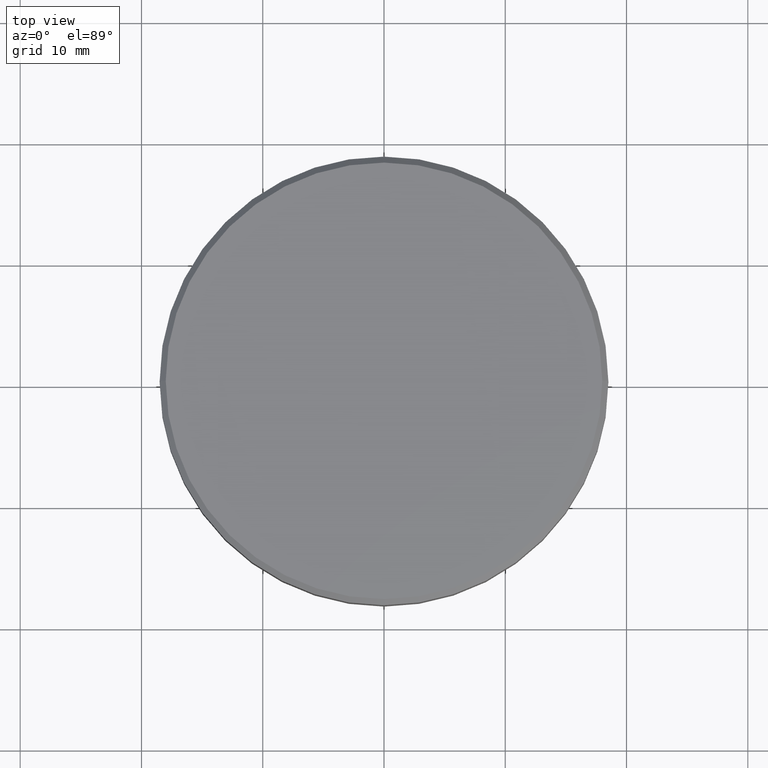
[diagram: clean part render]
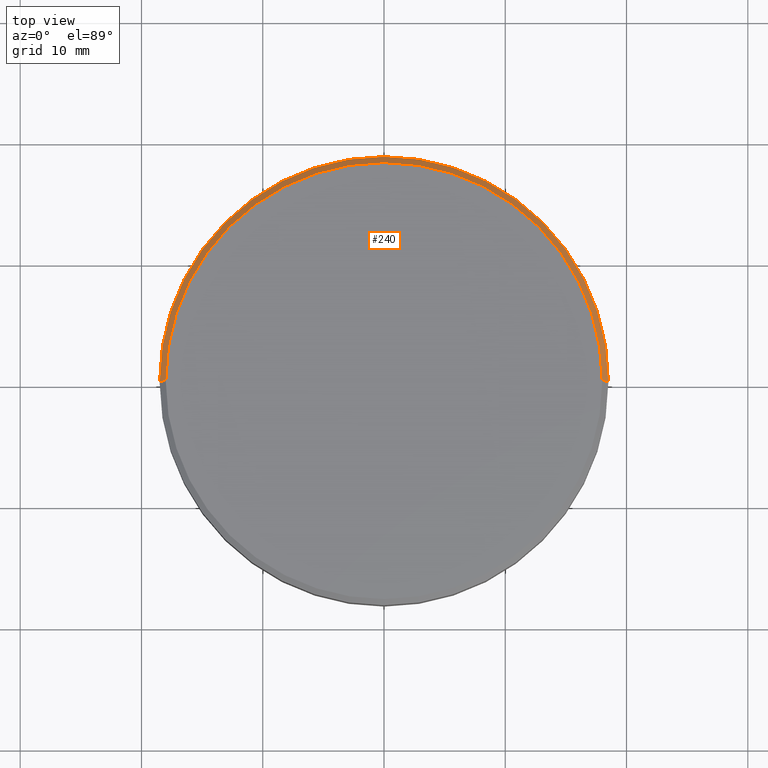
[diagram: same view with one face highlighted and labeled with its STEP entity id]
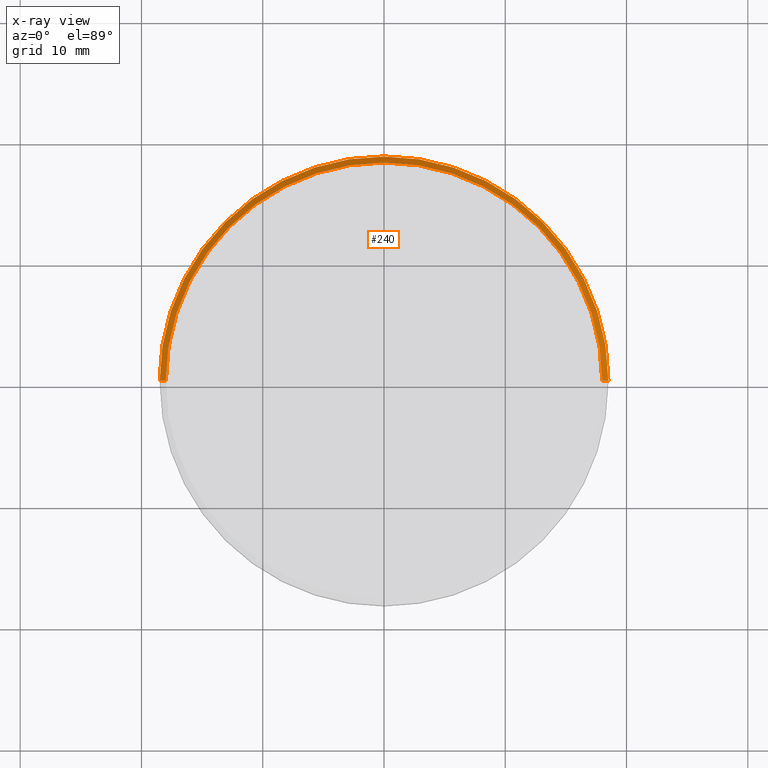
[diagram: x-ray of the same camera — body ghosted, the highlighted face saturated]
A machine part, top view. The second image highlights one B-rep face of the part: STEP entity #240.
The next image is the same camera in x-ray: the body ghosted, the highlighted face saturated — about 0% of this face is hidden behind the body in this view.
In plain terms, the highlighted conical surface has half-angle 45 deg.
Its self-contained STEP definition (entity closure, byte-faithful):
#4 = VECTOR ( 'NONE', #173, 1000.000000000000000 ) ;
#16 = CARTESIAN_POINT ( 'NONE',  ( -18.00000000000001066, 0.000000000000000000, 0.000000000000000000 ) ) ;
#18 = DIRECTION ( 'NONE',  ( -0.000000000000000000, -0.000000000000000000, 1.000000000000000000 ) ) ;
#35 = CARTESIAN_POINT ( 'NONE',  ( 18.00000000000001066, 2.234980408443920004E-15, 0.000000000000000000 ) ) ;
#57 = LINE ( 'NONE', #312, #4 ) ;
#58 = CARTESIAN_POINT ( 'NONE',  ( 0.000000000000000000, 0.000000000000000000, 0.000000000000000000 ) ) ;
#80 = CARTESIAN_POINT ( 'NONE',  ( -18.50000000000000000, 2.265596578422603396E-15, -0.5000000000000004441 ) ) ;
#82 = FACE_OUTER_BOUND ( 'NONE', #199, .T. ) ;
#103 = CARTESIAN_POINT ( 'NONE',  ( 18.50000000000000000, 0.000000000000000000, -0.5000000000000004441 ) ) ;
#109 = DIRECTION ( 'NONE',  ( 0.000000000000000000, 0.000000000000000000, -1.000000000000000000 ) ) ;
#115 = ORIENTED_EDGE ( 'NONE', *, *, #407, .F. ) ;
#120 = VERTEX_POINT ( 'NONE', #35 ) ;
#130 = CONICAL_SURFACE ( 'NONE', #165, 18.00000000000001066, 0.7853981633974378429 ) ;
#137 = CIRCLE ( 'NONE', #302, 18.00000000000001066 ) ;
#143 = DIRECTION ( 'NONE',  ( -1.000000000000000000, 0.000000000000000000, 0.000000000000000000 ) ) ;
#147 = CARTESIAN_POINT ( 'NONE',  ( 0.000000000000000000, 0.000000000000000000, -0.5000000000000004441 ) ) ;
#155 = DIRECTION ( 'NONE',  ( -0.7071067811865401342, 0.000000000000000000, -0.7071067811865549002 ) ) ;
#165 = AXIS2_PLACEMENT_3D ( 'NONE', #231, #109, #143 ) ;
#168 = VERTEX_POINT ( 'NONE', #103 ) ;
#173 = DIRECTION ( 'NONE',  ( 0.7071067811865401342, 8.659560562354844111E-17, -0.7071067811865549002 ) ) ;
#176 = EDGE_CURVE ( 'NONE', #120, #168, #57, .T. ) ;
#177 = VERTEX_POINT ( 'NONE', #387 ) ;
#199 = EDGE_LOOP ( 'NONE', ( #362, #328, #221, #115 ) ) ;
#208 = EDGE_CURVE ( 'NONE', #352, #168, #267, .T. ) ;
#212 = VECTOR ( 'NONE', #155, 1000.000000000000000 ) ;
#221 = ORIENTED_EDGE ( 'NONE', *, *, #208, .F. ) ;
#231 = CARTESIAN_POINT ( 'NONE',  ( 0.000000000000000000, 0.000000000000000000, 0.000000000000000000 ) ) ;
#240 = ADVANCED_FACE ( 'NONE', ( #82 ), #130, .T. ) ;
#246 = DIRECTION ( 'NONE',  ( 1.000000000000000000, 0.000000000000000000, 0.000000000000000000 ) ) ;
#266 = LINE ( 'NONE', #16, #212 ) ;
#267 = CIRCLE ( 'NONE', #322, 18.50000000000000000 ) ;
#302 = AXIS2_PLACEMENT_3D ( 'NONE', #58, #18, #246 ) ;
#312 = CARTESIAN_POINT ( 'NONE',  ( 18.00000000000001066, 2.204364238465237006E-15, 0.000000000000000000 ) ) ;
#322 = AXIS2_PLACEMENT_3D ( 'NONE', #147, #384, #394 ) ;
#328 = ORIENTED_EDGE ( 'NONE', *, *, #176, .T. ) ;
#352 = VERTEX_POINT ( 'NONE', #80 ) ;
#362 = ORIENTED_EDGE ( 'NONE', *, *, #380, .F. ) ;
#380 = EDGE_CURVE ( 'NONE', #120, #177, #137, .T. ) ;
#384 = DIRECTION ( 'NONE',  ( 0.000000000000000000, 0.000000000000000000, -1.000000000000000000 ) ) ;
#387 = CARTESIAN_POINT ( 'NONE',  ( -18.00000000000001066, 0.000000000000000000, 0.000000000000000000 ) ) ;
#394 = DIRECTION ( 'NONE',  ( 1.000000000000000000, 0.000000000000000000, 0.000000000000000000 ) ) ;
#407 = EDGE_CURVE ( 'NONE', #177, #352, #266, .T. ) ;